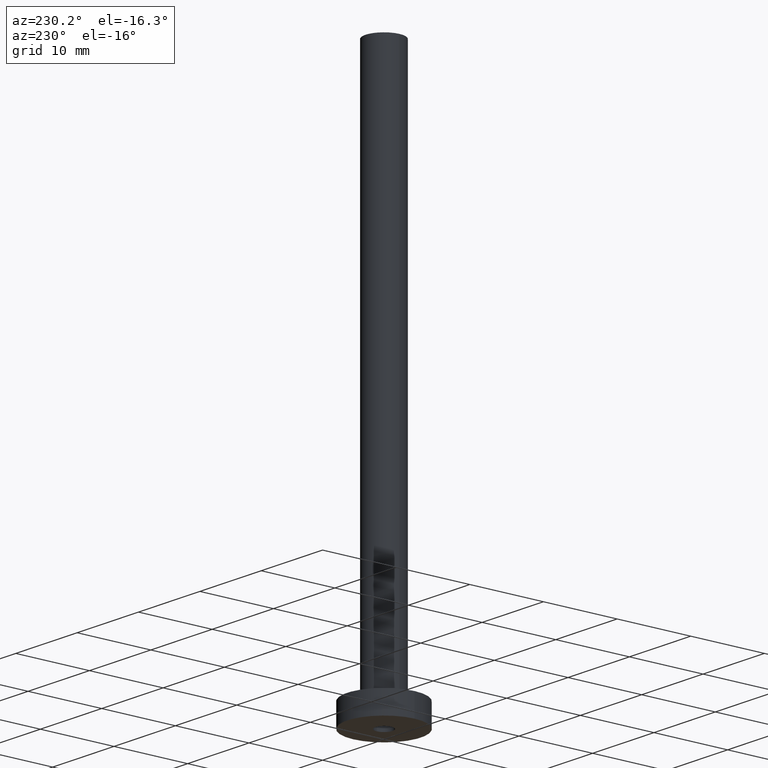
[diagram: clean part render]
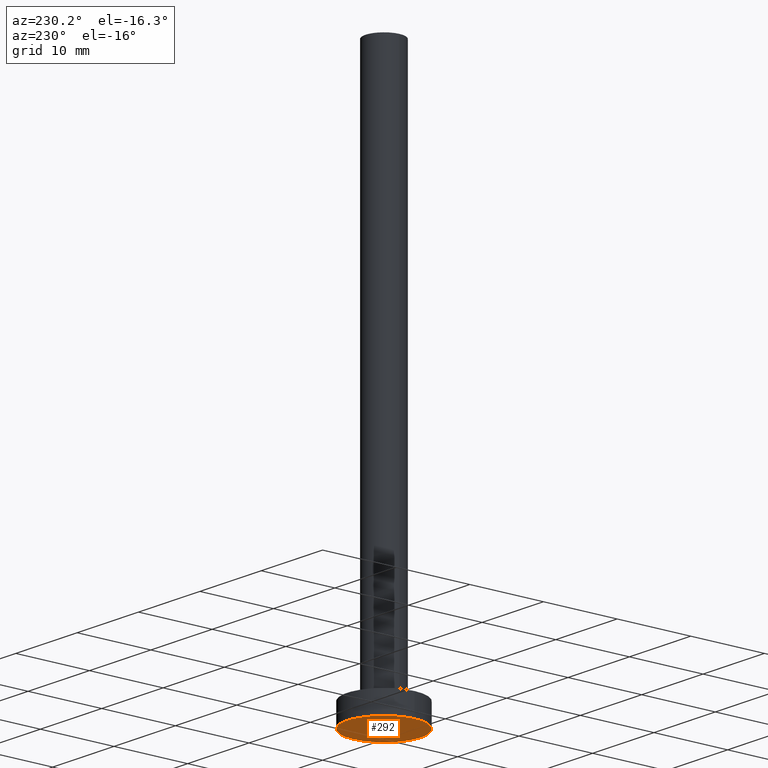
[diagram: same view with one face highlighted and labeled with its STEP entity id]
A machine part, auxiliary view. The second image highlights one B-rep face of the part: STEP entity #292.
In plain terms, the highlighted planar face has unit normal (0, 0, 1).
Its self-contained STEP definition (entity closure, byte-faithful):
#6 = DIRECTION ( 'NONE',  ( 0.000000000000000000, 0.000000000000000000, 1.000000000000000000 ) ) ;
#30 = CIRCLE ( 'NONE', #452, 1.149999999999999911 ) ;
#71 = DIRECTION ( 'NONE',  ( 1.000000000000000000, 0.000000000000000000, 0.000000000000000000 ) ) ;
#72 = CARTESIAN_POINT ( 'NONE',  ( 0.000000000000000000, 0.000000000000000000, 0.000000000000000000 ) ) ;
#75 = DIRECTION ( 'NONE',  ( -0.000000000000000000, -0.000000000000000000, -1.000000000000000000 ) ) ;
#79 = CARTESIAN_POINT ( 'NONE',  ( -1.149999999999999911, 0.000000000000000000, 0.000000000000000000 ) ) ;
#89 = ORIENTED_EDGE ( 'NONE', *, *, #227, .F. ) ;
#90 = PLANE ( 'NONE',  #355 ) ;
#92 = VERTEX_POINT ( 'NONE', #317 ) ;
#94 = ORIENTED_EDGE ( 'NONE', *, *, #152, .F. ) ;
#101 = DIRECTION ( 'NONE',  ( 1.000000000000000000, 0.000000000000000000, -0.000000000000000000 ) ) ;
#127 = CIRCLE ( 'NONE', #436, 5.000000000000000000 ) ;
#144 = DIRECTION ( 'NONE',  ( 1.000000000000000000, 0.000000000000000000, 0.000000000000000000 ) ) ;
#152 = EDGE_CURVE ( 'NONE', #165, #92, #411, .T. ) ;
#165 = VERTEX_POINT ( 'NONE', #401 ) ;
#173 = EDGE_LOOP ( 'NONE', ( #94, #89 ) ) ;
#193 = VERTEX_POINT ( 'NONE', #79 ) ;
#212 = DIRECTION ( 'NONE',  ( 1.000000000000000000, 0.000000000000000000, 0.000000000000000000 ) ) ;
#213 = DIRECTION ( 'NONE',  ( -0.000000000000000000, -0.000000000000000000, -1.000000000000000000 ) ) ;
#217 = CIRCLE ( 'NONE', #240, 1.149999999999999911 ) ;
#227 = EDGE_CURVE ( 'NONE', #92, #165, #127, .T. ) ;
#233 = FACE_BOUND ( 'NONE', #354, .T. ) ;
#240 = AXIS2_PLACEMENT_3D ( 'NONE', #385, #75, #71 ) ;
#253 = CARTESIAN_POINT ( 'NONE',  ( 0.000000000000000000, 0.000000000000000000, 0.000000000000000000 ) ) ;
#292 = ADVANCED_FACE ( 'NONE', ( #233, #408 ), #90, .F. ) ;
#317 = CARTESIAN_POINT ( 'NONE',  ( 5.000000000000000000, 6.123233995736766282E-16, 0.000000000000000000 ) ) ;
#321 = CARTESIAN_POINT ( 'NONE',  ( 1.149999999999999911, 1.408343819019456028E-16, 0.000000000000000000 ) ) ;
#328 = AXIS2_PLACEMENT_3D ( 'NONE', #253, #6, #144 ) ;
#354 = EDGE_LOOP ( 'NONE', ( #449, #378 ) ) ;
#355 = AXIS2_PLACEMENT_3D ( 'NONE', #415, #381, #101 ) ;
#356 = CARTESIAN_POINT ( 'NONE',  ( 0.000000000000000000, 0.000000000000000000, 0.000000000000000000 ) ) ;
#378 = ORIENTED_EDGE ( 'NONE', *, *, #440, .F. ) ;
#381 = DIRECTION ( 'NONE',  ( 0.000000000000000000, 0.000000000000000000, 1.000000000000000000 ) ) ;
#385 = CARTESIAN_POINT ( 'NONE',  ( 0.000000000000000000, 0.000000000000000000, 0.000000000000000000 ) ) ;
#393 = DIRECTION ( 'NONE',  ( 0.000000000000000000, 0.000000000000000000, 1.000000000000000000 ) ) ;
#401 = CARTESIAN_POINT ( 'NONE',  ( -5.000000000000000000, 0.000000000000000000, 0.000000000000000000 ) ) ;
#405 = EDGE_CURVE ( 'NONE', #193, #441, #30, .T. ) ;
#408 = FACE_OUTER_BOUND ( 'NONE', #173, .T. ) ;
#411 = CIRCLE ( 'NONE', #328, 5.000000000000000000 ) ;
#415 = CARTESIAN_POINT ( 'NONE',  ( 0.000000000000000000, 0.000000000000000000, 0.000000000000000000 ) ) ;
#417 = DIRECTION ( 'NONE',  ( 1.000000000000000000, 0.000000000000000000, 0.000000000000000000 ) ) ;
#436 = AXIS2_PLACEMENT_3D ( 'NONE', #72, #393, #212 ) ;
#440 = EDGE_CURVE ( 'NONE', #441, #193, #217, .T. ) ;
#441 = VERTEX_POINT ( 'NONE', #321 ) ;
#449 = ORIENTED_EDGE ( 'NONE', *, *, #405, .F. ) ;
#452 = AXIS2_PLACEMENT_3D ( 'NONE', #356, #213, #417 ) ;